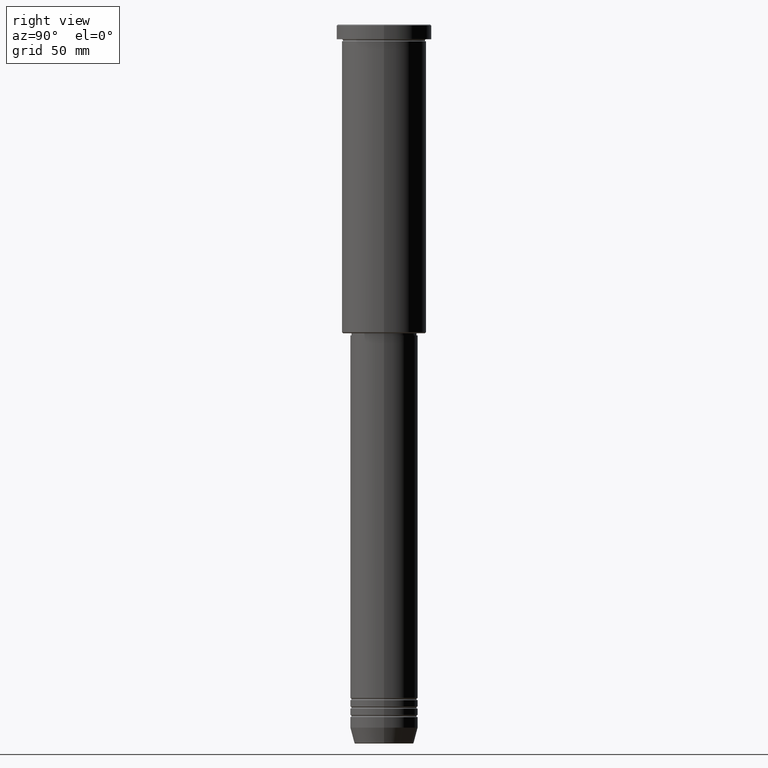
[diagram: clean part render]
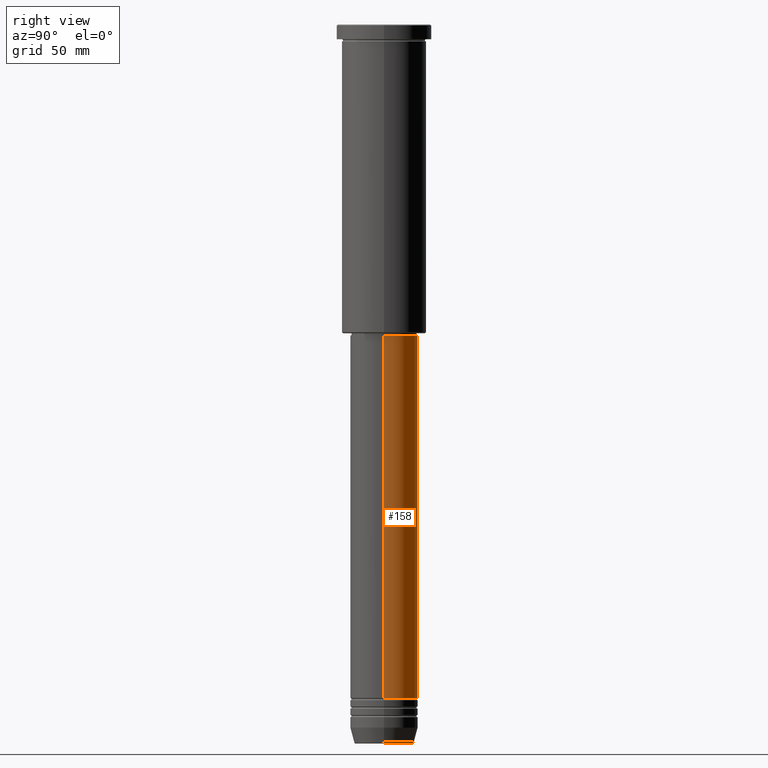
[diagram: same view with one face highlighted and labeled with its STEP entity id]
A machine part, right view. The second image highlights one B-rep face of the part: STEP entity #158.
In plain terms, the highlighted cylindrical surface (edge-blend (fillet) strip) has radius 16 mm, axis along (-0, -0, 1).
Its self-contained STEP definition (entity closure, byte-faithful):
#17 = DIRECTION ( 'NONE',  ( -0.000000000000000000, -0.000000000000000000, 1.000000000000000000 ) ) ;
#19 = EDGE_CURVE ( 'NONE', #504, #351, #626, .T. ) ;
#71 = CARTESIAN_POINT ( 'NONE',  ( 0.000000000000000000, 0.000000000000000000, -318.5000000000000000 ) ) ;
#103 = CARTESIAN_POINT ( 'NONE',  ( 0.000000000000000000, 0.000000000000000000, 0.000000000000000000 ) ) ;
#146 = VECTOR ( 'NONE', #920, 1000.000000000000000 ) ;
#150 = EDGE_CURVE ( 'NONE', #870, #857, #478, .T. ) ;
#158 = ADVANCED_FACE ( 'NONE', ( #994 ), #915, .T. ) ;
#188 = ORIENTED_EDGE ( 'NONE', *, *, #1134, .F. ) ;
#217 = ORIENTED_EDGE ( 'NONE', *, *, #150, .F. ) ;
#267 = CARTESIAN_POINT ( 'NONE',  ( 16.00000000000000000, 0.000000000000000000, -318.5000000000000000 ) ) ;
#272 = CARTESIAN_POINT ( 'NONE',  ( -16.00000000000000000, 1.959434878635765131E-15, 0.000000000000000000 ) ) ;
#327 = CARTESIAN_POINT ( 'NONE',  ( -16.00000000000000000, 1.959434878635765131E-15, -318.5000000000000000 ) ) ;
#351 = VERTEX_POINT ( 'NONE', #830 ) ;
#355 = CARTESIAN_POINT ( 'NONE',  ( 16.00000000000000000, 0.000000000000000000, -146.9999999999999147 ) ) ;
#368 = ORIENTED_EDGE ( 'NONE', *, *, #19, .T. ) ;
#378 = CIRCLE ( 'NONE', #489, 16.00000000000000000 ) ;
#388 = DIRECTION ( 'NONE',  ( 1.000000000000000000, 0.000000000000000000, 0.000000000000000000 ) ) ;
#419 = AXIS2_PLACEMENT_3D ( 'NONE', #714, #1066, #977 ) ;
#434 = DIRECTION ( 'NONE',  ( -0.000000000000000000, -0.000000000000000000, 1.000000000000000000 ) ) ;
#464 = DIRECTION ( 'NONE',  ( -0.000000000000000000, -0.000000000000000000, 1.000000000000000000 ) ) ;
#478 = LINE ( 'NONE', #639, #146 ) ;
#489 = AXIS2_PLACEMENT_3D ( 'NONE', #71, #434, #797 ) ;
#504 = VERTEX_POINT ( 'NONE', #327 ) ;
#514 = ORIENTED_EDGE ( 'NONE', *, *, #821, .T. ) ;
#626 = LINE ( 'NONE', #272, #884 ) ;
#638 = AXIS2_PLACEMENT_3D ( 'NONE', #103, #464, #388 ) ;
#639 = CARTESIAN_POINT ( 'NONE',  ( 16.00000000000000000, 0.000000000000000000, 0.000000000000000000 ) ) ;
#710 = CIRCLE ( 'NONE', #419, 16.00000000000000000 ) ;
#714 = CARTESIAN_POINT ( 'NONE',  ( 0.000000000000000000, 0.000000000000000000, -146.9999999999999147 ) ) ;
#797 = DIRECTION ( 'NONE',  ( 1.000000000000000000, 0.000000000000000000, 0.000000000000000000 ) ) ;
#821 = EDGE_CURVE ( 'NONE', #870, #504, #378, .T. ) ;
#830 = CARTESIAN_POINT ( 'NONE',  ( -16.00000000000000000, 1.959434878635765131E-15, -146.9999999999999147 ) ) ;
#857 = VERTEX_POINT ( 'NONE', #355 ) ;
#870 = VERTEX_POINT ( 'NONE', #267 ) ;
#884 = VECTOR ( 'NONE', #17, 1000.000000000000000 ) ;
#915 = CYLINDRICAL_SURFACE ( 'NONE', #638, 16.00000000000000000 ) ;
#920 = DIRECTION ( 'NONE',  ( -0.000000000000000000, -0.000000000000000000, 1.000000000000000000 ) ) ;
#977 = DIRECTION ( 'NONE',  ( 1.000000000000000000, 0.000000000000000000, 0.000000000000000000 ) ) ;
#994 = FACE_OUTER_BOUND ( 'NONE', #1098, .T. ) ;
#1066 = DIRECTION ( 'NONE',  ( -0.000000000000000000, -0.000000000000000000, 1.000000000000000000 ) ) ;
#1098 = EDGE_LOOP ( 'NONE', ( #514, #368, #188, #217 ) ) ;
#1134 = EDGE_CURVE ( 'NONE', #857, #351, #710, .T. ) ;